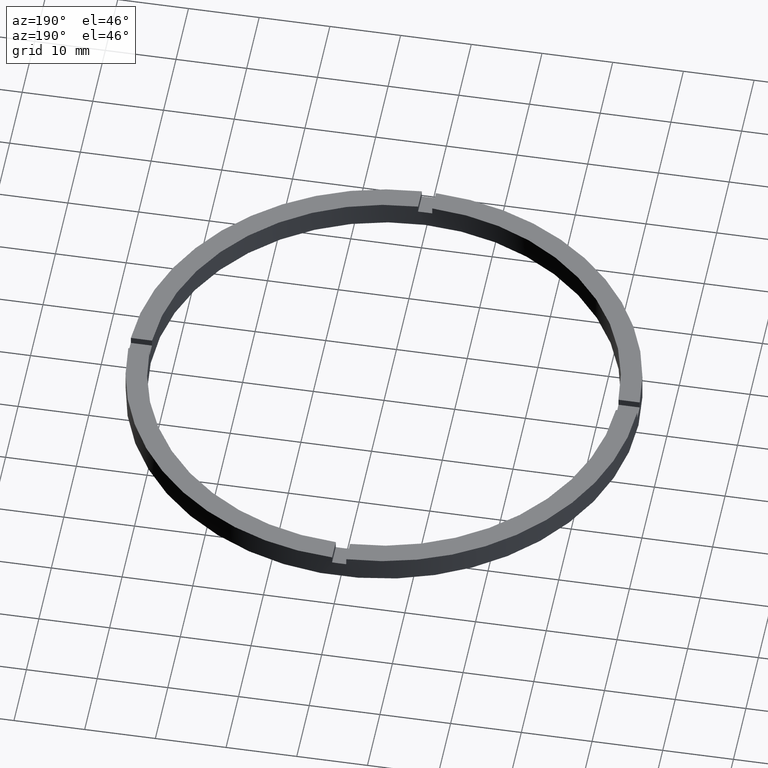
[diagram: clean part render]
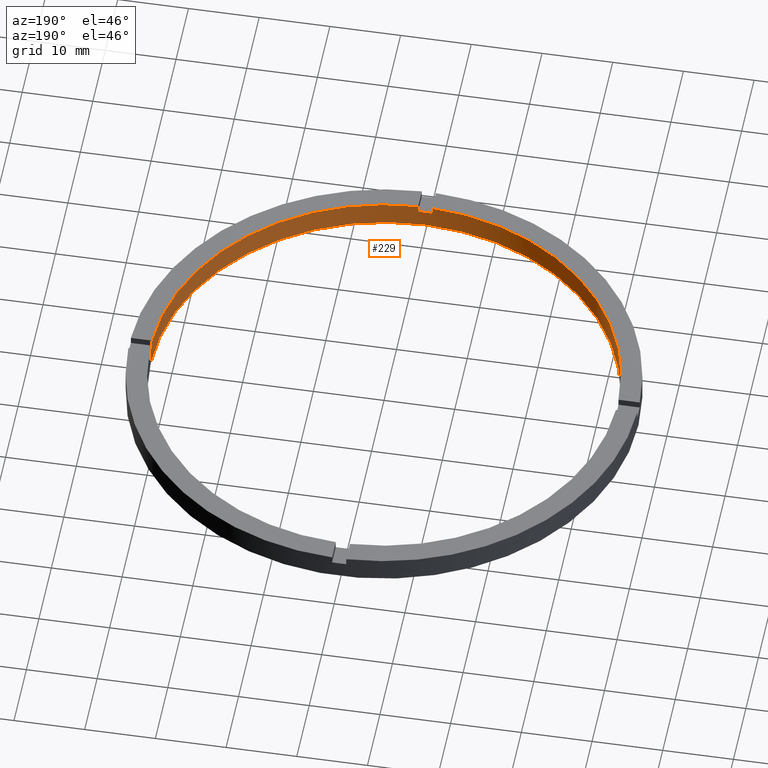
[diagram: same view with one face highlighted and labeled with its STEP entity id]
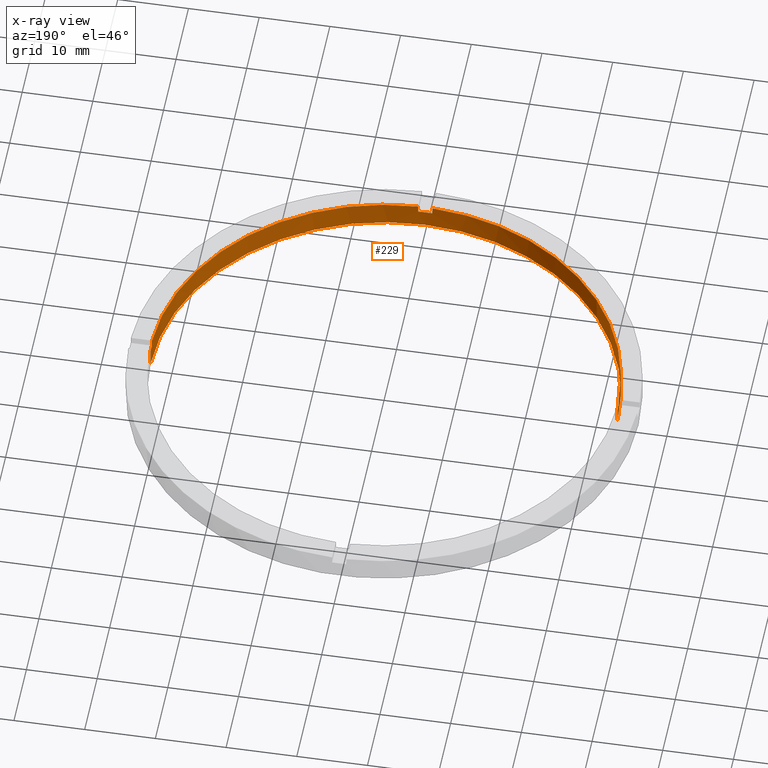
[diagram: x-ray of the same camera — body ghosted, the highlighted face saturated]
A machine part, auxiliary view. The second image highlights one B-rep face of the part: STEP entity #229.
The next image is the same camera in x-ray: the body ghosted, the highlighted face saturated — about 0% of this face is hidden behind the body in this view.
In plain terms, the highlighted cylindrical surface (partial cylindrical patch) has radius 33 mm, axis along (-0, -0, -1).
Its self-contained STEP definition (entity closure, byte-faithful):
#21 = CIRCLE ( 'NONE', #187, 33.00000000000000000 ) ;
#57 = ORIENTED_EDGE ( 'NONE', *, *, #103, .F. ) ;
#61 = VECTOR ( 'NONE', #423, 1000.000000000000000 ) ;
#63 = EDGE_CURVE ( 'NONE', #549, #300, #676, .T. ) ;
#70 = DIRECTION ( 'NONE',  ( -1.000000000000000000, 0.000000000000000000, 0.000000000000000000 ) ) ;
#95 = AXIS2_PLACEMENT_3D ( 'NONE', #566, #239, #721 ) ;
#96 = AXIS2_PLACEMENT_3D ( 'NONE', #745, #447, #781 ) ;
#97 = ORIENTED_EDGE ( 'NONE', *, *, #179, .T. ) ;
#99 = DIRECTION ( 'NONE',  ( 0.000000000000000000, 0.000000000000000000, 1.000000000000000000 ) ) ;
#103 = EDGE_CURVE ( 'NONE', #736, #645, #144, .T. ) ;
#104 = ORIENTED_EDGE ( 'NONE', *, *, #766, .F. ) ;
#106 = EDGE_LOOP ( 'NONE', ( #312, #97, #626, #57, #562, #564, #357, #206, #733, #385, #360, #104 ) ) ;
#107 = CARTESIAN_POINT ( 'NONE',  ( -1.000000000000160760, -32.98484500494128469, 3.500000000000000000 ) ) ;
#114 = CARTESIAN_POINT ( 'NONE',  ( 0.000000000000000000, 0.000000000000000000, 3.500000000000000000 ) ) ;
#138 = VERTEX_POINT ( 'NONE', #715 ) ;
#144 = LINE ( 'NONE', #324, #424 ) ;
#145 = AXIS2_PLACEMENT_3D ( 'NONE', #226, #209, #70 ) ;
#155 = CARTESIAN_POINT ( 'NONE',  ( 33.00000000000000000, 4.041334437186266200E-15, 0.000000000000000000 ) ) ;
#164 = EDGE_CURVE ( 'NONE', #645, #381, #169, .T. ) ;
#169 = CIRCLE ( 'NONE', #527, 33.00000000000000000 ) ;
#179 = EDGE_CURVE ( 'NONE', #540, #381, #440, .T. ) ;
#180 = LINE ( 'NONE', #448, #437 ) ;
#184 = DIRECTION ( 'NONE',  ( -0.000000000000000000, -0.000000000000000000, -1.000000000000000000 ) ) ;
#187 = AXIS2_PLACEMENT_3D ( 'NONE', #114, #193, #434 ) ;
#193 = DIRECTION ( 'NONE',  ( 0.000000000000000000, 0.000000000000000000, 1.000000000000000000 ) ) ;
#196 = VECTOR ( 'NONE', #460, 1000.000000000000000 ) ;
#198 = CIRCLE ( 'NONE', #278, 33.00000000000000000 ) ;
#206 = ORIENTED_EDGE ( 'NONE', *, *, #225, .F. ) ;
#209 = DIRECTION ( 'NONE',  ( -0.000000000000000000, -0.000000000000000000, -1.000000000000000000 ) ) ;
#219 = VERTEX_POINT ( 'NONE', #699 ) ;
#223 = CARTESIAN_POINT ( 'NONE',  ( 32.98484500494128469, -1.000000000000158096, 3.500000000000000000 ) ) ;
#225 = EDGE_CURVE ( 'NONE', #660, #556, #457, .T. ) ;
#226 = CARTESIAN_POINT ( 'NONE',  ( 0.000000000000000000, 0.000000000000000000, 3.500000000000000000 ) ) ;
#229 = ADVANCED_FACE ( 'NONE', ( #695 ), #430, .F. ) ;
#234 = CARTESIAN_POINT ( 'NONE',  ( 0.9999999999998393507, -32.98484500494129179, 3.500000000000000000 ) ) ;
#239 = DIRECTION ( 'NONE',  ( 0.000000000000000000, 0.000000000000000000, 1.000000000000000000 ) ) ;
#242 = CARTESIAN_POINT ( 'NONE',  ( -1.000000000000160760, -32.98484500494128469, 2.500000000000000000 ) ) ;
#251 = CARTESIAN_POINT ( 'NONE',  ( 0.000000000000000000, 0.000000000000000000, 0.000000000000000000 ) ) ;
#259 = EDGE_CURVE ( 'NONE', #660, #219, #198, .T. ) ;
#273 = LINE ( 'NONE', #411, #541 ) ;
#278 = AXIS2_PLACEMENT_3D ( 'NONE', #747, #685, #524 ) ;
#279 = CARTESIAN_POINT ( 'NONE',  ( -32.98484500494128469, -1.000000000000026645, 3.500000000000000000 ) ) ;
#280 = EDGE_CURVE ( 'NONE', #138, #540, #454, .T. ) ;
#298 = CARTESIAN_POINT ( 'NONE',  ( 33.00000000000000000, 4.041334437186266200E-15, 3.500000000000000000 ) ) ;
#300 = VERTEX_POINT ( 'NONE', #223 ) ;
#310 = AXIS2_PLACEMENT_3D ( 'NONE', #400, #99, #480 ) ;
#312 = ORIENTED_EDGE ( 'NONE', *, *, #280, .T. ) ;
#324 = CARTESIAN_POINT ( 'NONE',  ( -33.00000000000000000, 0.000000000000000000, 3.500000000000000000 ) ) ;
#328 = EDGE_CURVE ( 'NONE', #669, #462, #180, .T. ) ;
#357 = ORIENTED_EDGE ( 'NONE', *, *, #710, .T. ) ;
#360 = ORIENTED_EDGE ( 'NONE', *, *, #63, .T. ) ;
#369 = DIRECTION ( 'NONE',  ( -0.000000000000000000, -0.000000000000000000, -1.000000000000000000 ) ) ;
#381 = VERTEX_POINT ( 'NONE', #155 ) ;
#385 = ORIENTED_EDGE ( 'NONE', *, *, #578, .F. ) ;
#389 = DIRECTION ( 'NONE',  ( 0.000000000000000000, 0.000000000000000000, 1.000000000000000000 ) ) ;
#400 = CARTESIAN_POINT ( 'NONE',  ( 0.000000000000000000, 0.000000000000000000, 3.500000000000000000 ) ) ;
#411 = CARTESIAN_POINT ( 'NONE',  ( 0.9999999999998393507, -32.98484500494129179, 3.500000000000000000 ) ) ;
#423 = DIRECTION ( 'NONE',  ( 0.000000000000000000, 0.000000000000000000, 1.000000000000000000 ) ) ;
#424 = VECTOR ( 'NONE', #717, 1000.000000000000000 ) ;
#427 = VECTOR ( 'NONE', #389, 1000.000000000000000 ) ;
#430 = CYLINDRICAL_SURFACE ( 'NONE', #145, 33.00000000000000000 ) ;
#432 = DIRECTION ( 'NONE',  ( 0.000000000000000000, 0.000000000000000000, 1.000000000000000000 ) ) ;
#434 = DIRECTION ( 'NONE',  ( 1.000000000000000000, 0.000000000000000000, 0.000000000000000000 ) ) ;
#437 = VECTOR ( 'NONE', #369, 1000.000000000000000 ) ;
#440 = LINE ( 'NONE', #298, #196 ) ;
#447 = DIRECTION ( 'NONE',  ( 0.000000000000000000, 0.000000000000000000, 1.000000000000000000 ) ) ;
#448 = CARTESIAN_POINT ( 'NONE',  ( -32.98484500494128469, -1.000000000000026645, 3.500000000000000000 ) ) ;
#454 = CIRCLE ( 'NONE', #96, 33.00000000000000000 ) ;
#457 = LINE ( 'NONE', #611, #427 ) ;
#460 = DIRECTION ( 'NONE',  ( -0.000000000000000000, -0.000000000000000000, -1.000000000000000000 ) ) ;
#462 = VERTEX_POINT ( 'NONE', #776 ) ;
#480 = DIRECTION ( 'NONE',  ( 1.000000000000000000, 0.000000000000000000, 0.000000000000000000 ) ) ;
#524 = DIRECTION ( 'NONE',  ( 1.000000000000000000, 0.000000000000000000, 0.000000000000000000 ) ) ;
#527 = AXIS2_PLACEMENT_3D ( 'NONE', #251, #432, #548 ) ;
#540 = VERTEX_POINT ( 'NONE', #764 ) ;
#541 = VECTOR ( 'NONE', #184, 1000.000000000000000 ) ;
#543 = LINE ( 'NONE', #646, #61 ) ;
#548 = DIRECTION ( 'NONE',  ( 1.000000000000000000, 0.000000000000000000, 0.000000000000000000 ) ) ;
#549 = VERTEX_POINT ( 'NONE', #234 ) ;
#556 = VERTEX_POINT ( 'NONE', #107 ) ;
#561 = CIRCLE ( 'NONE', #95, 33.00000000000000000 ) ;
#562 = ORIENTED_EDGE ( 'NONE', *, *, #587, .T. ) ;
#564 = ORIENTED_EDGE ( 'NONE', *, *, #328, .F. ) ;
#566 = CARTESIAN_POINT ( 'NONE',  ( 0.000000000000000000, 0.000000000000000000, 2.500000000000000000 ) ) ;
#578 = EDGE_CURVE ( 'NONE', #549, #219, #273, .T. ) ;
#587 = EDGE_CURVE ( 'NONE', #736, #462, #561, .T. ) ;
#611 = CARTESIAN_POINT ( 'NONE',  ( -1.000000000000160760, -32.98484500494128469, 3.500000000000000000 ) ) ;
#626 = ORIENTED_EDGE ( 'NONE', *, *, #164, .F. ) ;
#645 = VERTEX_POINT ( 'NONE', #740 ) ;
#646 = CARTESIAN_POINT ( 'NONE',  ( 32.98484500494128469, -1.000000000000158096, 3.500000000000000000 ) ) ;
#660 = VERTEX_POINT ( 'NONE', #242 ) ;
#669 = VERTEX_POINT ( 'NONE', #279 ) ;
#676 = CIRCLE ( 'NONE', #310, 33.00000000000000000 ) ;
#685 = DIRECTION ( 'NONE',  ( -0.000000000000000000, 0.000000000000000000, 1.000000000000000000 ) ) ;
#695 = FACE_OUTER_BOUND ( 'NONE', #106, .T. ) ;
#699 = CARTESIAN_POINT ( 'NONE',  ( 0.9999999999998393507, -32.98484500494129179, 2.500000000000000000 ) ) ;
#710 = EDGE_CURVE ( 'NONE', #669, #556, #21, .T. ) ;
#715 = CARTESIAN_POINT ( 'NONE',  ( 32.98484500494128469, -1.000000000000158096, 2.500000000000000000 ) ) ;
#717 = DIRECTION ( 'NONE',  ( -0.000000000000000000, -0.000000000000000000, -1.000000000000000000 ) ) ;
#721 = DIRECTION ( 'NONE',  ( 1.000000000000000000, 0.000000000000000000, 0.000000000000000000 ) ) ;
#733 = ORIENTED_EDGE ( 'NONE', *, *, #259, .T. ) ;
#736 = VERTEX_POINT ( 'NONE', #741 ) ;
#740 = CARTESIAN_POINT ( 'NONE',  ( -33.00000000000000000, 0.000000000000000000, 0.000000000000000000 ) ) ;
#741 = CARTESIAN_POINT ( 'NONE',  ( -33.00000000000000000, 0.000000000000000000, 2.500000000000000000 ) ) ;
#745 = CARTESIAN_POINT ( 'NONE',  ( 0.000000000000000000, 0.000000000000000000, 2.500000000000000000 ) ) ;
#747 = CARTESIAN_POINT ( 'NONE',  ( 0.000000000000000000, 0.000000000000000000, 2.500000000000000000 ) ) ;
#764 = CARTESIAN_POINT ( 'NONE',  ( 33.00000000000000000, 4.041334437186266200E-15, 2.500000000000000000 ) ) ;
#766 = EDGE_CURVE ( 'NONE', #138, #300, #543, .T. ) ;
#776 = CARTESIAN_POINT ( 'NONE',  ( -32.98484500494128469, -1.000000000000026645, 2.500000000000000000 ) ) ;
#781 = DIRECTION ( 'NONE',  ( 1.000000000000000000, 0.000000000000000000, 0.000000000000000000 ) ) ;